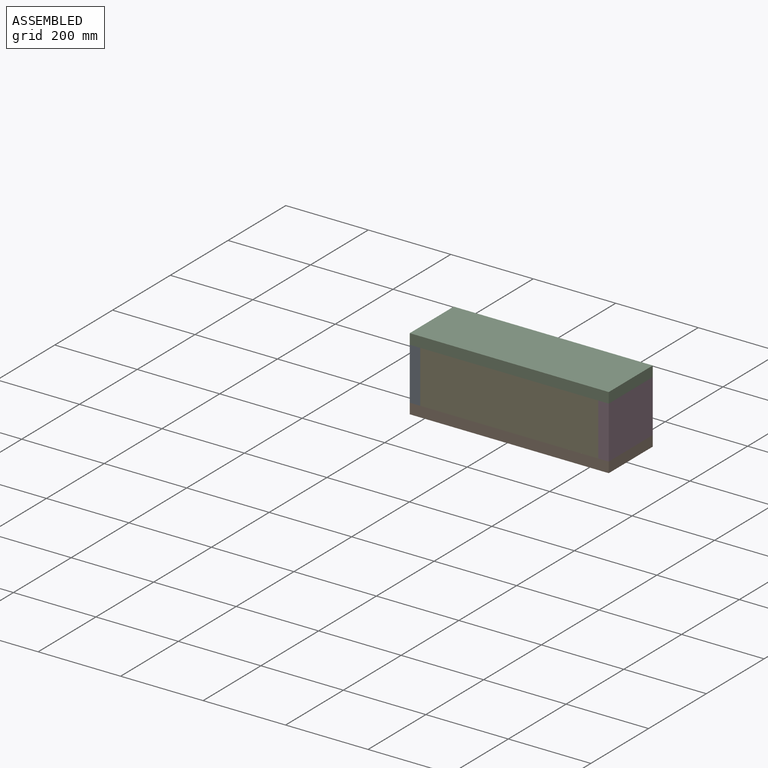
[diagram: assembled view]
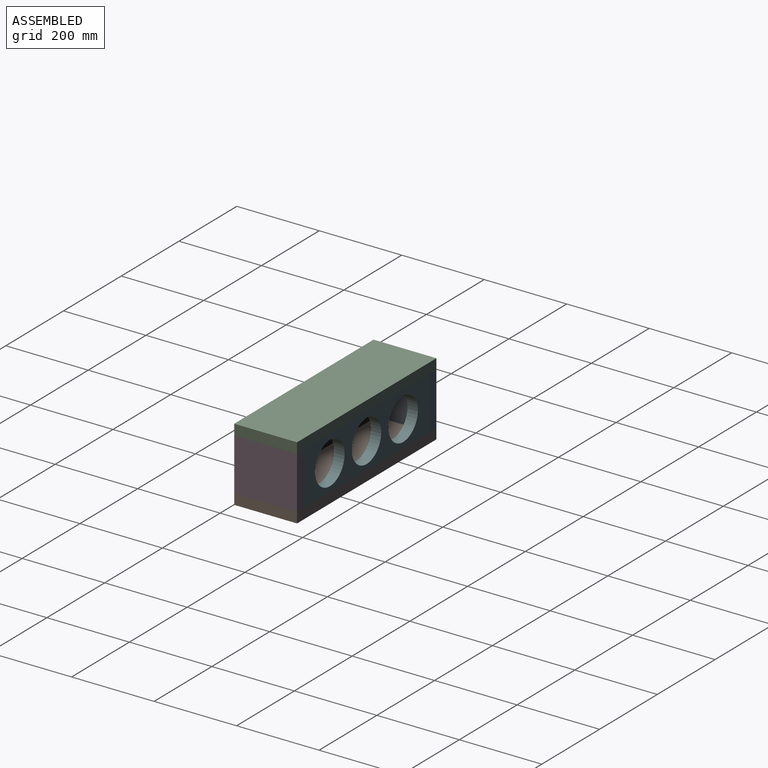
[diagram: assembled view, second angle]
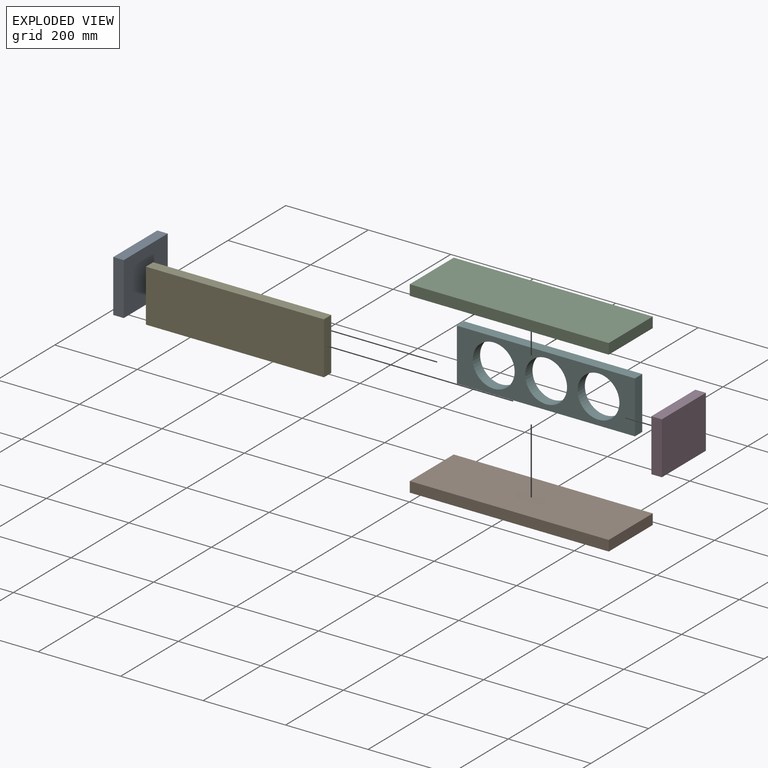
[diagram: exploded view]
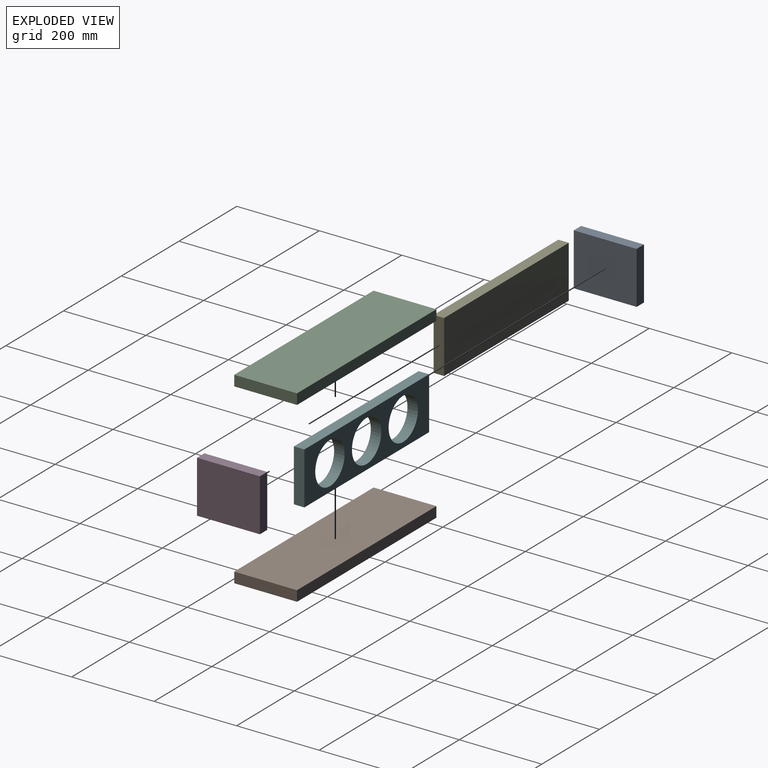
[diagram: exploded view, second angle]
ASSEMBLY  parts=6 mates=5
PART A: 6 faces, bbox 127x25.4x152.4 mm
  f0: plane 127x25.4mm, normal (0,0,1), area 3225.8mm2, adj f1,f3,f4,f5
  f1: plane 152.4x25.4mm, normal (-1,0,0), area 3871mm2, adj f0,f2,f4,f5
  f2: plane 127x25.4mm, normal (0,0,-1), area 3225.8mm2, adj f1,f3,f4,f5
  f3: plane 152.4x25.4mm, normal (1,0,0), area 3871mm2, adj f0,f2,f4,f5
  f4: plane 152.4x127mm, normal (0,-1,0), area 19354.8mm2, adj f0,f1,f2,f3
  f5: plane 152.4x127mm, normal (0,1,0), area 19354.8mm2, adj f0,f1,f2,f3
PART B: 6 faces, bbox 482.6x152.4x25.4 mm
  f0: plane 482.6x25.4mm, normal (0,1,0), area 12258mm2, adj f1,f3,f4,f5
  f1: plane 152.4x25.4mm, normal (-1,0,0), area 3871mm2, adj f0,f2,f4,f5
  f2: plane 482.6x25.4mm, normal (0,-1,0), area 12258mm2, adj f1,f3,f4,f5
  f3: plane 152.4x25.4mm, normal (1,0,0), area 3871mm2, adj f0,f2,f4,f5
  f4: plane 482.6x152.4mm, normal (0,0,1), area 73548.2mm2, adj f0,f1,f2,f3
  f5: plane 482.6x152.4mm, normal (0,0,-1), area 73548.2mm2, adj f0,f1,f2,f3
PART C: same geometry as B
PART D: same geometry as A
PART E: 6 faces, bbox 431.8x25.4x127 mm
  f0: plane 431.8x25.4mm, normal (0,0,1), area 10967.7mm2, adj f1,f3,f4,f5
  f1: plane 127x25.4mm, normal (-1,0,0), area 3225.8mm2, adj f0,f2,f4,f5
  f2: plane 431.8x25.4mm, normal (0,0,-1), area 10967.7mm2, adj f1,f3,f4,f5
  f3: plane 127x25.4mm, normal (1,0,0), area 3225.8mm2, adj f0,f2,f4,f5
  f4: plane 431.8x127mm, normal (0,-1,0), area 54838.6mm2, adj f0,f1,f2,f3
  f5: plane 431.8x127mm, normal (0,1,0), area 54838.6mm2, adj f0,f1,f2,f3
PART F: 9 faces, bbox 431.8x25.4x127 mm
  f0: plane 431.8x25.4mm, normal (0,0,1), area 10967.7mm2, adj f1,f3,f4,f5
  f1: plane 127x25.4mm, normal (-1,0,0), area 3225.8mm2, adj f0,f2,f4,f5
  f2: plane 431.8x25.4mm, normal (0,0,-1), area 10967.7mm2, adj f1,f3,f4,f5
  f3: plane 127x25.4mm, normal (1,0,0), area 3225.8mm2, adj f0,f2,f4,f5
  f4: plane 431.8x127mm, normal (0,-1,0), area 30516.6mm2, adj f0,f1,f2,f3,f6,f7,f8
  f5: plane 431.8x127mm, normal (0,1,0), area 30516.6mm2, adj f0,f1,f2,f3,f6,f7,f8
  f6: cylinder r=50.8mm len=101.6mm, axis (0,-1,0), area 8107.3mm2, adj f4,f5
  f7: cylinder r=50.8mm len=101.6mm, axis (0,-1,0), area 8107.3mm2, adj f4,f5
  f8: cylinder r=50.8mm len=101.6mm, axis (0,-1,0), area 8107.3mm2, adj f4,f5
PLACE A rot(axis=(0.58,0.58,-0.58),120deg) t=(-189.11,98.74,21.65)mm
PLACE B rot(axis=(1,0,0),180deg) t=(30.08,74.83,-34.89)mm
PLACE C t=(30.08,121.26,92.11)mm
PLACE D rot(axis=(0.58,0.58,-0.58),120deg) t=(268.09,98.74,21.65)mm
PLACE E t=(-93.18,47.24,19.68)mm
PLACE F t=(27.22,174.24,53.79)mm
MATE fastened B.f5 <-> D.f3  axis (0,0,1) through (268.09,98.04,-34.89)mm
MATE fastened F.f3 <-> D.f4  axis (1,0,0) through (242.69,174.24,28.61)mm
MATE fastened D.f4 <-> E.f3  axis (-1,0,0) through (242.69,21.84,28.61)mm
MATE fastened A.f0 <-> E.f4  axis (0,-1,0) through (-189.11,21.84,28.61)mm
MATE fastened C.f5 <-> D.f1  axis (0,0,-1) through (268.09,98.04,92.11)mm
